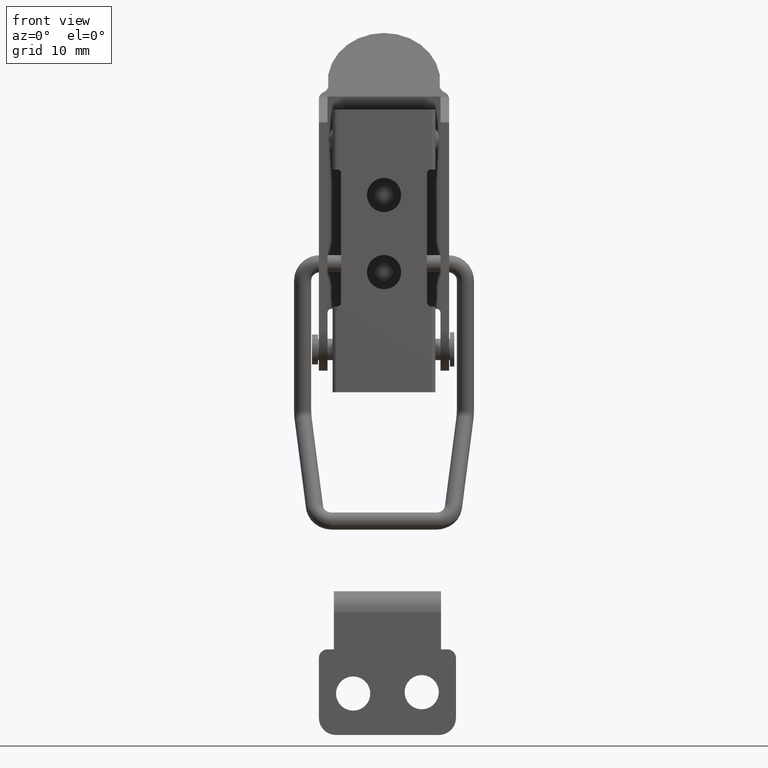
[diagram: clean part render]
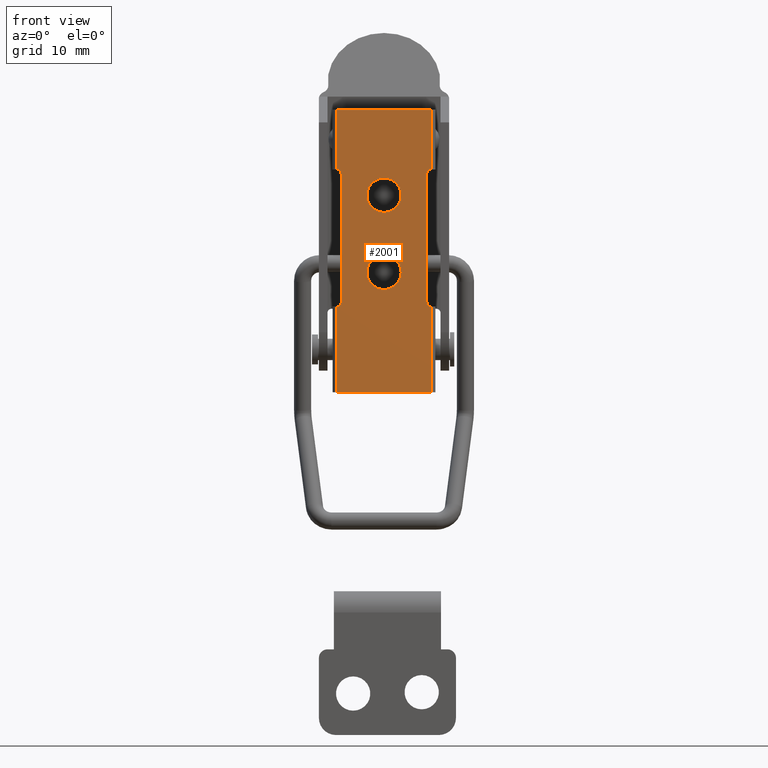
[diagram: same view with one face highlighted and labeled with its STEP entity id]
A machine part, front view. The second image highlights one B-rep face of the part: STEP entity #2001.
In plain terms, the highlighted planar face has unit normal (0, -1, -0).
Its self-contained STEP definition (entity closure, byte-faithful):
#74=PLANE('',#2151);
#128=LINE('',#3061,#281);
#138=LINE('',#3092,#291);
#145=LINE('',#3116,#298);
#146=LINE('',#3119,#299);
#154=LINE('',#3137,#307);
#155=LINE('',#3139,#308);
#156=LINE('',#3140,#309);
#157=LINE('',#3141,#310);
#281=VECTOR('',#2409,15.);
#291=VECTOR('',#2437,15.);
#298=VECTOR('',#2460,10.);
#299=VECTOR('',#2463,11.);
#307=VECTOR('',#2475,7.);
#308=VECTOR('',#2476,11.);
#309=VECTOR('',#2477,7.);
#310=VECTOR('',#2478,10.);
#436=FACE_BOUND('',#632,.T.);
#437=FACE_BOUND('',#633,.T.);
#506=FACE_OUTER_BOUND('',#631,.T.);
#631=EDGE_LOOP('',(#1437,#1438,#1439,#1440,#1441,#1442,#1443,#1444,#1445,
#1446,#1447,#1448));
#632=EDGE_LOOP('',(#1449));
#633=EDGE_LOOP('',(#1450));
#790=CIRCLE('',#2113,2.);
#792=CIRCLE('',#2116,2.);
#801=CIRCLE('',#2130,0.5);
#803=CIRCLE('',#2134,0.5);
#806=CIRCLE('',#2139,0.5);
#808=CIRCLE('',#2143,0.5);
#904=VERTEX_POINT('',#3022);
#906=VERTEX_POINT('',#3027);
#916=VERTEX_POINT('',#3051);
#917=VERTEX_POINT('',#3053);
#919=VERTEX_POINT('',#3059);
#921=VERTEX_POINT('',#3065);
#928=VERTEX_POINT('',#3082);
#929=VERTEX_POINT('',#3084);
#931=VERTEX_POINT('',#3090);
#933=VERTEX_POINT('',#3096);
#938=VERTEX_POINT('',#3110);
#941=VERTEX_POINT('',#3118);
#949=VERTEX_POINT('',#3136);
#950=VERTEX_POINT('',#3138);
#1102=EDGE_CURVE('',#904,#904,#790,.T.);
#1104=EDGE_CURVE('',#906,#906,#792,.T.);
#1114=EDGE_CURVE('',#916,#917,#801,.T.);
#1118=EDGE_CURVE('',#919,#916,#128,.T.);
#1121=EDGE_CURVE('',#921,#919,#803,.T.);
#1129=EDGE_CURVE('',#928,#929,#806,.T.);
#1133=EDGE_CURVE('',#931,#928,#138,.T.);
#1136=EDGE_CURVE('',#933,#931,#808,.T.);
#1145=EDGE_CURVE('',#917,#938,#145,.T.);
#1146=EDGE_CURVE('',#938,#941,#146,.T.);
#1155=EDGE_CURVE('',#949,#921,#154,.T.);
#1156=EDGE_CURVE('',#950,#949,#155,.T.);
#1157=EDGE_CURVE('',#929,#950,#156,.T.);
#1158=EDGE_CURVE('',#941,#933,#157,.T.);
#1437=ORIENTED_EDGE('',*,*,#1145,.F.);
#1438=ORIENTED_EDGE('',*,*,#1114,.F.);
#1439=ORIENTED_EDGE('',*,*,#1118,.F.);
#1440=ORIENTED_EDGE('',*,*,#1121,.F.);
#1441=ORIENTED_EDGE('',*,*,#1155,.F.);
#1442=ORIENTED_EDGE('',*,*,#1156,.F.);
#1443=ORIENTED_EDGE('',*,*,#1157,.F.);
#1444=ORIENTED_EDGE('',*,*,#1129,.F.);
#1445=ORIENTED_EDGE('',*,*,#1133,.F.);
#1446=ORIENTED_EDGE('',*,*,#1136,.F.);
#1447=ORIENTED_EDGE('',*,*,#1158,.F.);
#1448=ORIENTED_EDGE('',*,*,#1146,.F.);
#1449=ORIENTED_EDGE('',*,*,#1102,.T.);
#1450=ORIENTED_EDGE('',*,*,#1104,.T.);
#2001=ADVANCED_FACE('',(#506,#436,#437),#74,.T.);
#2113=AXIS2_PLACEMENT_3D('',#3023,#2367,#2368);
#2116=AXIS2_PLACEMENT_3D('',#3028,#2373,#2374);
#2130=AXIS2_PLACEMENT_3D('',#3054,#2402,#2403);
#2134=AXIS2_PLACEMENT_3D('',#3067,#2415,#2416);
#2139=AXIS2_PLACEMENT_3D('',#3085,#2430,#2431);
#2143=AXIS2_PLACEMENT_3D('',#3098,#2443,#2444);
#2151=AXIS2_PLACEMENT_3D('',#3135,#2473,#2474);
#2367=DIRECTION('center_axis',(0.,1.,1.82934475648463E-16));
#2368=DIRECTION('ref_axis',(1.,0.,0.));
#2373=DIRECTION('center_axis',(0.,1.,1.82934475648463E-16));
#2374=DIRECTION('ref_axis',(1.,0.,0.));
#2402=DIRECTION('center_axis',(0.,-1.,-1.82934475648463E-16));
#2403=DIRECTION('ref_axis',(-0.707106781186549,0.,-0.707106781186546));
#2409=DIRECTION('',(0.,1.82934475648463E-16,-1.));
#2415=DIRECTION('center_axis',(0.,-1.,-1.82934475648463E-16));
#2416=DIRECTION('ref_axis',(-0.707106781186548,0.,0.707106781186548));
#2430=DIRECTION('center_axis',(0.,-1.,-1.82934475648463E-16));
#2431=DIRECTION('ref_axis',(0.707106781186548,0.,0.707106781186548));
#2437=DIRECTION('',(0.,-1.82934475648463E-16,1.));
#2443=DIRECTION('center_axis',(0.,-1.,-1.82934475648463E-16));
#2444=DIRECTION('ref_axis',(0.707106781186549,0.,-0.707106781186546));
#2460=DIRECTION('',(0.,1.82934475648463E-16,-1.));
#2463=DIRECTION('',(-1.,0.,0.));
#2473=DIRECTION('center_axis',(0.,-1.,-1.82934475648463E-16));
#2474=DIRECTION('ref_axis',(0.,1.82934475648463E-16,-1.));
#2475=DIRECTION('',(0.,1.82934475648463E-16,-1.));
#2476=DIRECTION('',(1.,0.,0.));
#2477=DIRECTION('',(0.,-1.82934475648463E-16,1.));
#2478=DIRECTION('',(0.,-1.82934475648463E-16,1.));
#3022=CARTESIAN_POINT('',(-2.,1.11022302462516E-15,-19.));
#3023=CARTESIAN_POINT('Origin',(0.,1.11022302462516E-15,-19.));
#3027=CARTESIAN_POINT('',(-2.,5.55111512312578E-16,-10.));
#3028=CARTESIAN_POINT('Origin',(0.,5.55111512312578E-16,-10.));
#3051=CARTESIAN_POINT('',(5.,4.11602570209042E-15,-22.5));
#3053=CARTESIAN_POINT('',(5.5,4.20749293991466E-15,-23.));
#3054=CARTESIAN_POINT('Origin',(5.5,0.,-22.5));
#3059=CARTESIAN_POINT('',(5.,1.37200856736347E-15,-7.5));
#3061=CARTESIAN_POINT('',(5.,6.03683769639929E-15,-33.));
#3065=CARTESIAN_POINT('',(5.5,-9.37548704951515E-17,-7.));
#3067=CARTESIAN_POINT('Origin',(5.5,-4.71844785465692E-15,-7.5));
#3082=CARTESIAN_POINT('',(-5.,1.37200856736347E-15,-7.5));
#3084=CARTESIAN_POINT('',(-5.5,-9.37548704951515E-17,-7.));
#3085=CARTESIAN_POINT('Origin',(-5.5,-4.71844785465692E-15,-7.5));
#3090=CARTESIAN_POINT('',(-5.,4.11602570209042E-15,-22.5));
#3092=CARTESIAN_POINT('',(-5.,6.03683769639929E-15,-33.));
#3096=CARTESIAN_POINT('',(-5.5,4.20749293991466E-15,-23.));
#3098=CARTESIAN_POINT('Origin',(-5.5,0.,-22.5));
#3110=CARTESIAN_POINT('',(5.5,6.03683769639929E-15,-33.));
#3116=CARTESIAN_POINT('',(5.5,2.56739074444567E-15,-14.));
#3118=CARTESIAN_POINT('',(-5.5,6.03683769639929E-15,-33.));
#3119=CARTESIAN_POINT('',(0.,6.03683769639929E-15,-33.));
#3135=CARTESIAN_POINT('Origin',(0.,0.,0.));
#3136=CARTESIAN_POINT('',(5.5,0.,0.));
#3137=CARTESIAN_POINT('',(5.5,3.46944695195361E-16,-1.75));
#3138=CARTESIAN_POINT('',(-5.5,0.,0.));
#3139=CARTESIAN_POINT('',(0.,0.,0.));
#3140=CARTESIAN_POINT('',(-5.5,3.46944695195361E-16,-1.75));
#3141=CARTESIAN_POINT('',(-5.5,2.56739074444567E-15,-14.));